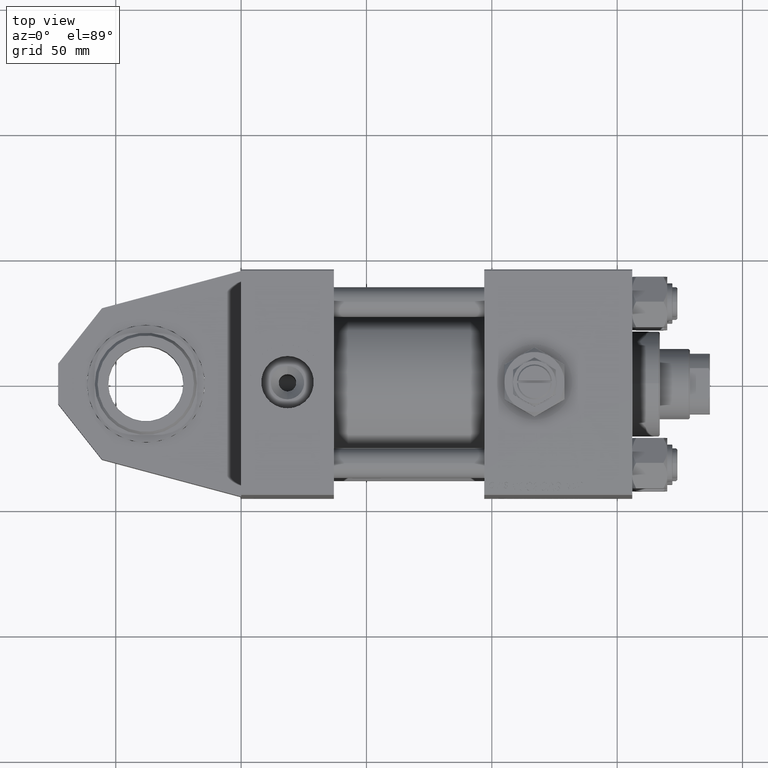
[diagram: clean part render]
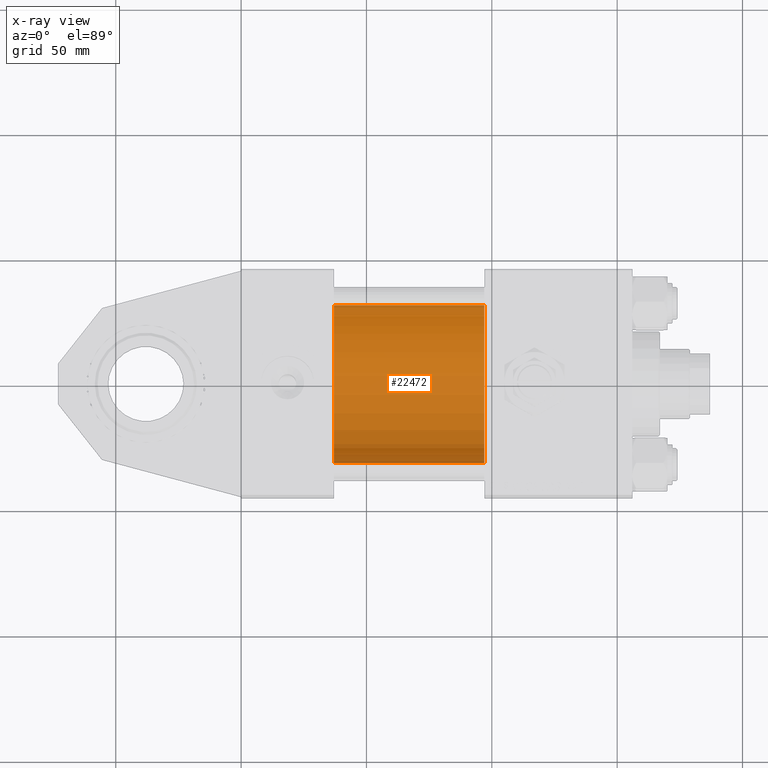
[diagram: x-ray — body ghosted, one internal face saturated and labeled with its STEP entity id]
A machine part, top view, then the same camera in x-ray: the body is ghosted and one INTERNAL B-rep face — a face not visible from any outside direction — is saturated and labeled: STEP entity #22472.
In plain terms, the highlighted cylindrical surface (partial cylindrical patch) has radius 31.5 mm, axis along (-1, 0, -0).
Its self-contained STEP definition (entity closure, byte-faithful):
#645 = EDGE_CURVE ( 'NONE', #42614, #36389, #6439, .T. ) ;
#1057 = DIRECTION ( 'NONE',  ( 1.000000000000000000, 0.000000000000000000, 0.000000000000000000 ) ) ;
#2699 = EDGE_CURVE ( 'NONE', #36389, #37470, #39729, .T. ) ;
#3968 = DIRECTION ( 'NONE',  ( 0.000000000000000000, 0.000000000000000000, -1.000000000000000000 ) ) ;
#4019 = CARTESIAN_POINT ( 'NONE',  ( 97.00000000000000000, -2.602085213965210642E-15, 0.000000000000000000 ) ) ;
#4363 = ORIENTED_EDGE ( 'NONE', *, *, #2699, .T. ) ;
#5021 = LINE ( 'NONE', #32833, #40673 ) ;
#6439 = CIRCLE ( 'NONE', #49187, 31.50000000000000000 ) ;
#7653 = CARTESIAN_POINT ( 'NONE',  ( 37.00000000000000000, -2.602085213965210642E-15, 0.000000000000000000 ) ) ;
#10706 = EDGE_CURVE ( 'NONE', #11622, #37470, #16844, .T. ) ;
#11622 = VERTEX_POINT ( 'NONE', #38892 ) ;
#11781 = CARTESIAN_POINT ( 'NONE',  ( 97.00000000000000000, -2.602085213965210642E-15, 31.50000000000000000 ) ) ;
#15078 = CARTESIAN_POINT ( 'NONE',  ( 97.00000000000000000, 1.255552203348951850E-15, -31.50000000000000000 ) ) ;
#15570 = FACE_OUTER_BOUND ( 'NONE', #36605, .T. ) ;
#16844 = CIRCLE ( 'NONE', #45329, 31.50000000000000000 ) ;
#18693 = AXIS2_PLACEMENT_3D ( 'NONE', #4019, #23451, #43659 ) ;
#22472 = ADVANCED_FACE ( 'NONE', ( #15570 ), #27635, .F. ) ;
#23451 = DIRECTION ( 'NONE',  ( -1.000000000000000000, -0.000000000000000000, -0.000000000000000000 ) ) ;
#24671 = CARTESIAN_POINT ( 'NONE',  ( 97.00000000000000000, -2.602085213965210642E-15, 0.000000000000000000 ) ) ;
#26881 = EDGE_CURVE ( 'NONE', #42614, #11622, #5021, .T. ) ;
#27635 = CYLINDRICAL_SURFACE ( 'NONE', #18693, 31.50000000000000000 ) ;
#28889 = ORIENTED_EDGE ( 'NONE', *, *, #645, .T. ) ;
#31074 = DIRECTION ( 'NONE',  ( -1.000000000000000000, -0.000000000000000000, -0.000000000000000000 ) ) ;
#32833 = CARTESIAN_POINT ( 'NONE',  ( 97.00000000000000000, -2.602085213965210642E-15, 31.50000000000000000 ) ) ;
#32938 = ORIENTED_EDGE ( 'NONE', *, *, #10706, .F. ) ;
#36389 = VERTEX_POINT ( 'NONE', #50964 ) ;
#36605 = EDGE_LOOP ( 'NONE', ( #28889, #4363, #32938, #37364 ) ) ;
#37364 = ORIENTED_EDGE ( 'NONE', *, *, #26881, .F. ) ;
#37470 = VERTEX_POINT ( 'NONE', #38646 ) ;
#38646 = CARTESIAN_POINT ( 'NONE',  ( 37.00000000000000000, 1.255552203348951850E-15, -31.50000000000000000 ) ) ;
#38892 = CARTESIAN_POINT ( 'NONE',  ( 37.00000000000000000, -2.602085213965210642E-15, 31.50000000000000000 ) ) ;
#39729 = LINE ( 'NONE', #15078, #45072 ) ;
#39921 = DIRECTION ( 'NONE',  ( 1.000000000000000000, 0.000000000000000000, 0.000000000000000000 ) ) ;
#40673 = VECTOR ( 'NONE', #48843, 1000.000000000000000 ) ;
#42614 = VERTEX_POINT ( 'NONE', #11781 ) ;
#43659 = DIRECTION ( 'NONE',  ( 0.000000000000000000, 0.000000000000000000, 1.000000000000000000 ) ) ;
#45072 = VECTOR ( 'NONE', #31074, 1000.000000000000000 ) ;
#45329 = AXIS2_PLACEMENT_3D ( 'NONE', #7653, #39921, #3968 ) ;
#45855 = DIRECTION ( 'NONE',  ( 0.000000000000000000, 0.000000000000000000, -1.000000000000000000 ) ) ;
#48843 = DIRECTION ( 'NONE',  ( -1.000000000000000000, -0.000000000000000000, -0.000000000000000000 ) ) ;
#49187 = AXIS2_PLACEMENT_3D ( 'NONE', #24671, #1057, #45855 ) ;
#50964 = CARTESIAN_POINT ( 'NONE',  ( 97.00000000000000000, 1.255552203348951850E-15, -31.50000000000000000 ) ) ;